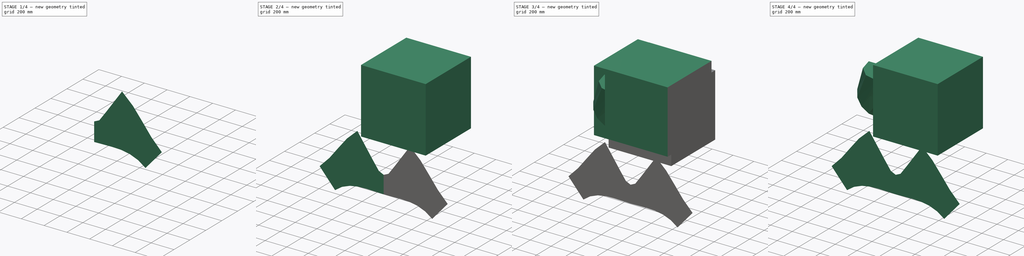
[diagram: build sequence overview — one tinted view per stage of 4, left to right]
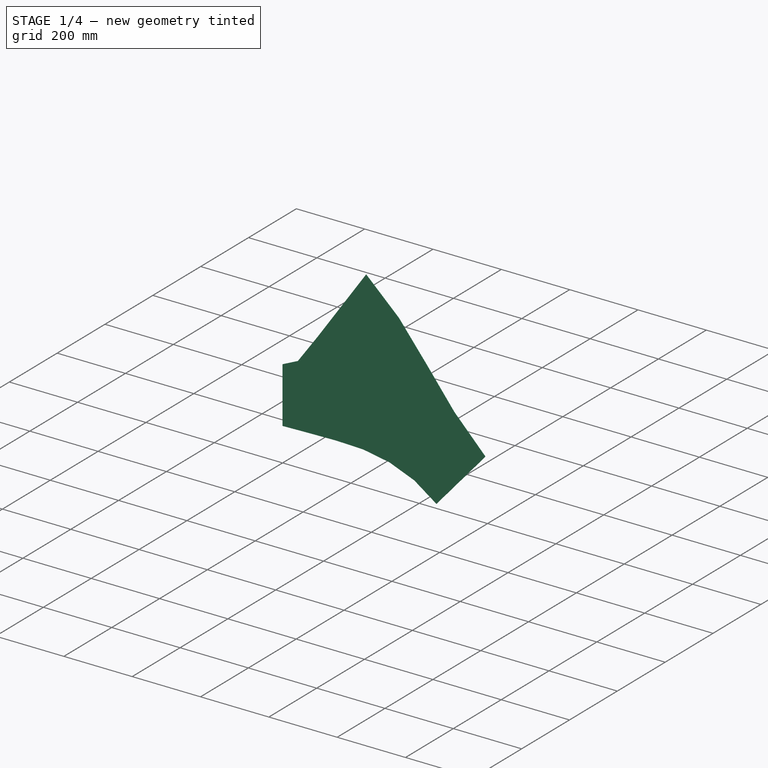
[diagram: stage 1 of 4 — iso view after this stage's code; geometry added in this stage tinted green]
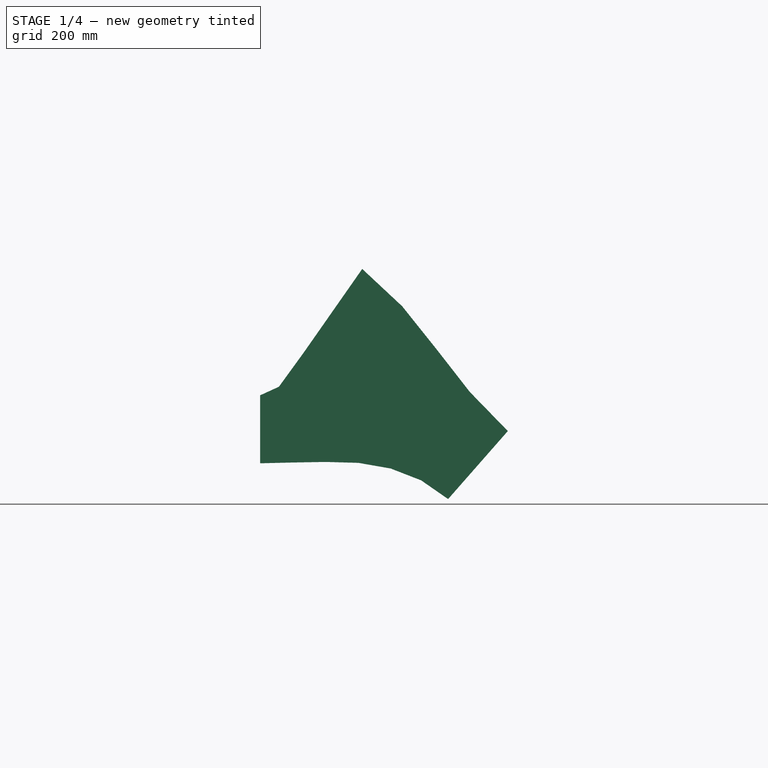
[diagram: stage 1 of 4 — front view after this stage's code; geometry added in this stage tinted green]
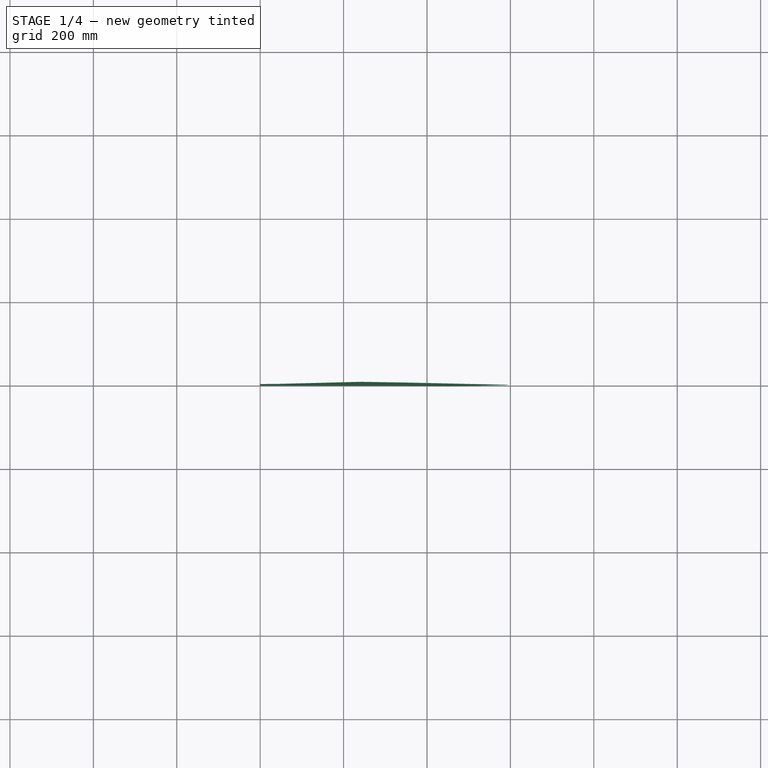
[diagram: stage 1 of 4 — top view after this stage's code; geometry added in this stage tinted green]
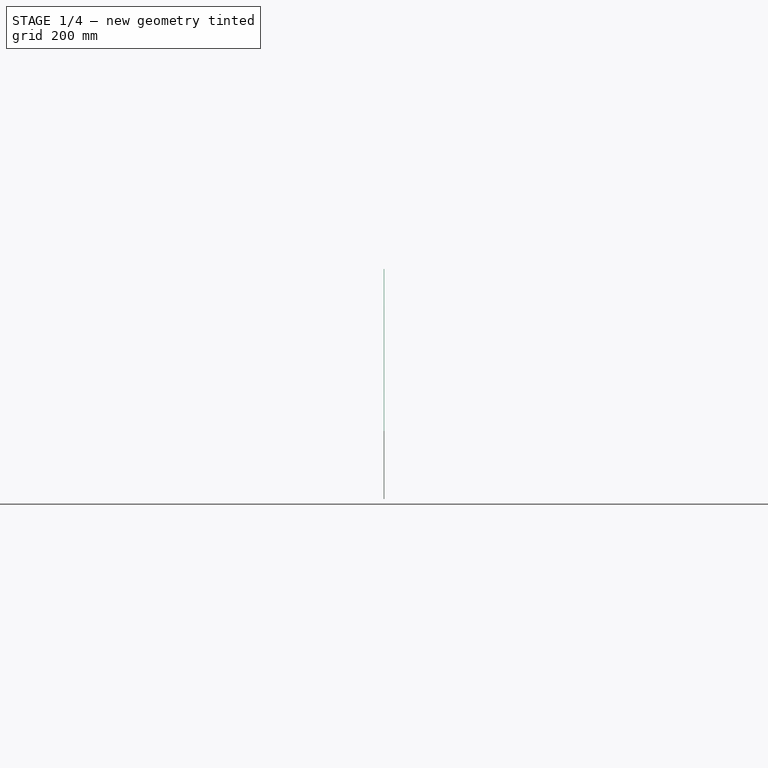
[diagram: stage 1 of 4 — right view after this stage's code; geometry added in this stage tinted green]
FCSTD DOCUMENT  (FreeCAD 0.18R16131 (Git))
Label: calça
License: All rights reserved
LicenseURL: http://en.wikipedia.org/wiki/All_rights_reserved
objects: App::FeaturePython×36, Part::Feature×16, Part::Box×3, Part::Cut×3, Part::RegularPolygon×2, Part::Loft×2, Part::Circle×2, Part::MultiFuse×2, PartDesign::Body×2, Sketcher::SketchObject×1, PartDesign::Pad×1, PartDesign::FeatureBase×1, Part::Compound×1
note: 37 computed .brp shape members not serialized (recipe doc carries the construction recipe); baked Part::Feature solids carry a one-line shape summary decoded from their .brp

FEATURE [Part::Cut] Cut002
  Base = -> Loft001
  Tool = -> Box002
FEATURE [Part::Feature] Cut002001  label="Cut003"
  Placement = pos=(0,0,0) rot=(0,0,1;3.14159rad)
  shape: bbox 568.2 x 560.2 x 418.2 mm, 1 faces, 0 solids (baked)
FEATURE [Part::MultiFuse] Fusion
  Shapes = -> [Cut002,Cut002001]
FEATURE [App::FeaturePython] Dimension016  # Draft dimension (typed FeaturePython)
  Diameter = false
  Dimline = (4.59e-14,250,0)
  Direction = (0,0,0)
  Distance = 500
  End = (4.59e-14,250,0)
  Normal = (0,0,1)
  Start = (-4.59e-14,-250,0)
FEATURE [App::FeaturePython] Dimension017  # Draft dimension (typed FeaturePython)
  Diameter = false
  Dimline = (-212.132,150,-312.132)
  Direction = (0,0,0)
  Distance = 299.983
  End = (-212.132,150,-312.132)
  Normal = (-0.707107,-1e-16,-0.707107)
  Start = (-212.239,-149.983,-312.025)
FEATURE [Sketcher::SketchObject] Sketch
  MapMode = 5
  Placement = pos=(0,0,0) rot=(1,0,0;1.5708rad)
  Support = -> [XZ_Plane]
  sketch-geometry (32):
    g0: LineSegment [constr] StartX=0 StartY=-500 StartZ=0 EndX=0 EndY=-1049 EndZ=0
    g1: LineSegment [constr] StartX=0 StartY=-1049 StartZ=0 EndX=-129.11 EndY=-521.573 EndZ=0
    g2: LineSegment [constr] StartX=-129.11 StartY=-521.573 StartZ=0 EndX=0 EndY=-500 EndZ=0
    g3: LineSegment [constr] StartX=-129.11 StartY=-521.573 StartZ=0 EndX=-78.5179 EndY=-1047.14 EndZ=0
    g4: LineSegment StartX=-78.5179 StartY=-1047.14 StartZ=0 EndX=0 EndY=-1049 EndZ=0
    g5: LineSegment [constr] StartX=-78.5179 StartY=-1047.14 StartZ=0 EndX=-244.703 EndY=-582.997 EndZ=0
    g6: LineSegment [constr] StartX=-244.703 StartY=-582.997 StartZ=0 EndX=-129.11 EndY=-521.573 EndZ=0
    g7: LineSegment [constr] StartX=-244.703 StartY=-582.997 StartZ=0 EndX=-157.046 EndY=-1045.77 EndZ=0
    g8: LineSegment StartX=-157.046 StartY=-1045.77 StartZ=0 EndX=-78.5179 EndY=-1047.14 EndZ=0
    g9: LineSegment [constr] StartX=-157.046 StartY=-1045.77 StartZ=0 EndX=-340.371 EndY=-672.341 EndZ=0
    g10: LineSegment StartX=-340.371 StartY=-672.341 StartZ=0 EndX=-244.703 EndY=-582.997 EndZ=0
    g11: LineSegment [constr] StartX=-340.371 StartY=-672.341 StartZ=0 EndX=-235.554 EndY=-1047.99 EndZ=0
    g12: LineSegment StartX=-235.554 StartY=-1047.99 StartZ=0 EndX=-157.046 EndY=-1045.77 EndZ=0
    g13: LineSegment [constr] StartX=-235.554 StartY=-1047.99 StartZ=0 EndX=-422.117 EndY=-774.578 EndZ=0
    g14: LineSegment StartX=-422.117 StartY=-774.578 StartZ=0 EndX=-340.371 EndY=-672.341 EndZ=0
    g15: LineSegment [constr] StartX=-422.117 StartY=-774.578 StartZ=0 EndX=-312.923 EndY=-1061.5 EndZ=0
    g16: LineSegment StartX=-312.923 StartY=-1061.5 StartZ=0 EndX=-235.554 EndY=-1047.99 EndZ=0
    g17: LineSegment [constr] StartX=-312.923 StartY=-1061.5 StartZ=0 EndX=-502.564 EndY=-877.839 EndZ=0
    g18: LineSegment StartX=-502.564 StartY=-877.839 StartZ=0 EndX=-422.117 EndY=-774.578 EndZ=0
    g19: LineSegment [constr] StartX=-502.564 StartY=-877.839 StartZ=0 EndX=-386.118 EndY=-1089.98 EndZ=0
    g20: LineSegment StartX=-386.118 StartY=-1089.98 StartZ=0 EndX=-312.923 EndY=-1061.5 EndZ=0
    g21: LineSegment [constr] StartX=-386.118 StartY=-1089.98 StartZ=0 EndX=-593.8 EndY=-971.705 EndZ=0
    g22: LineSegment StartX=-593.8 StartY=-971.705 StartZ=0 EndX=-502.564 EndY=-877.839 EndZ=0
    g23: LineSegment StartX=-593.8 StartY=-971.705 StartZ=0 EndX=-450.631 EndY=-1134.78 EndZ=0
    g24: LineSegment StartX=-450.631 StartY=-1134.78 StartZ=0 EndX=-386.118 EndY=-1089.98 EndZ=0
    g25: GeomPoint X=0 Y=-886 Z=0
    g26: GeomPoint X=-44.9388 Y=-865.42 Z=0
    g27: GeomPoint X=-103.814 Y=-784.358 Z=0
    g28: LineSegment StartX=-244.703 StartY=-582.997 StartZ=0 EndX=-103.814 EndY=-784.358 EndZ=0
    g29: LineSegment StartX=-103.814 StartY=-784.358 StartZ=0 EndX=-44.9388 EndY=-865.42 EndZ=0
    g30: LineSegment StartX=-44.9388 StartY=-865.42 StartZ=0 EndX=0 EndY=-886 EndZ=0
    g31: LineSegment StartX=0 StartY=-886 StartZ=0 EndX=0 EndY=-1049 EndZ=0
  constraints (78):
    c: Vertical(g0)
    c: Coincident(g0,g1)
    c: Coincident(g1,g2)
    c: Coincident(g2,g0)
    c: Distance(g0) = 549
    c: Distance(g1) = 543
    c: Distance(g2) = 130.9  'diam*pi/12=step'
    c: Coincident(g1,g3)
    c: Coincident(g3,g4)
    c: Coincident(g4,g0)
    c: Distance(g3) = 528
    c: Distance(g4) = 78.5398  'diam*pi/12 = step'
    c: Coincident(g3,g5)
    c: Coincident(g5,g6)
    c: Coincident(g6,g1)
    c: Equal(g2,g6)
    c: Distance(g5) = 493
    c: Coincident(g5,g7)
    c: Coincident(g7,g8)
    c: Coincident(g8,g3)
    c: Equal(g4,g8)
    c: Distance(g7) = 471
    c: Coincident(g7,g9)
    c: Coincident(g9,g10)
    c: Coincident(g10,g5)
    c: Equal(g6,g10)
    c: Distance(g9) = 416
    c: Coincident(g9,g11)
    c: Coincident(g11,g12)
    c: Coincident(g12,g7)
    c: Equal(g8,g12)
    c: Distance(g11) = 390
    c: Coincident(g11,g13)
    c: Coincident(g13,g14)
    c: Coincident(g14,g9)
    c: Equal(g10,g14)
    c: Distance(g13) = 331
    c: Coincident(g13,g15)
    c: Coincident(g15,g16)
    c: Coincident(g16,g11)
    c: Equal(g12,g16)
    c: Distance(g15) = 307
    c: Coincident(g15,g17)
    c: Coincident(g17,g18)
    c: Coincident(g18,g13)
    c: Equal(g14,g18)
    c: Distance(g17) = 264
    c: Coincident(g17,g19)
    c: Coincident(g19,g20)
    c: Coincident(g20,g15)
    c: Equal(g16,g20)
    c: Distance(g19) = 242
    c: Coincident(g19,g21)
    c: Coincident(g21,g22)
    c: Coincident(g22,g17)
    c: Equal(g18,g22)
    c: Distance(g21) = 239
    c: Coincident(g21,g23)
    c: Coincident(g23,g24)
    c: Coincident(g24,g19)
    c: Equal(g20,g24)
    c: Distance(g23) = 217
    c: PointOnObject(g26,g1)
    c: PointOnObject(g27,g3)
    c: PointOnObject(g25,g0)
    c: DistanceY(g0,g25) = 163
    c: Distance(g26,g0) = 189
    c: Distance(g27,g3) = 264
    c: Coincident(g6,g28)
    c: Coincident(g28,g27)
    c: Coincident(g28,g29)
    c: Coincident(g29,g26)
    c: Coincident(g29,g30)
    c: Coincident(g30,g25)
    c: PointOnObject(g2,g-2)
    c: DistanceY(g2,g-1) = 500
    c: Coincident(g31,g25)
    c: Coincident(g31,g4)
FEATURE [PartDesign::Pad] Pad
  Length = 1
  Length2 = 100
  Midplane = true
  Placement = pos=(0,0,0) rot=(1,0,0;1.5708rad)
  Profile = -> Sketch
  Type = 0
FEATURE [PartDesign::Body] Body
  Group = -> [Sketch,Pad]
  Origin = -> Origin
  Tip = -> Pad
FEATURE [PartDesign::FeatureBase] Clone
  BaseFeature = -> Pad
  Placement = pos=(0,0,0) rot=(0,0.707107,0.707107;3.14159rad)
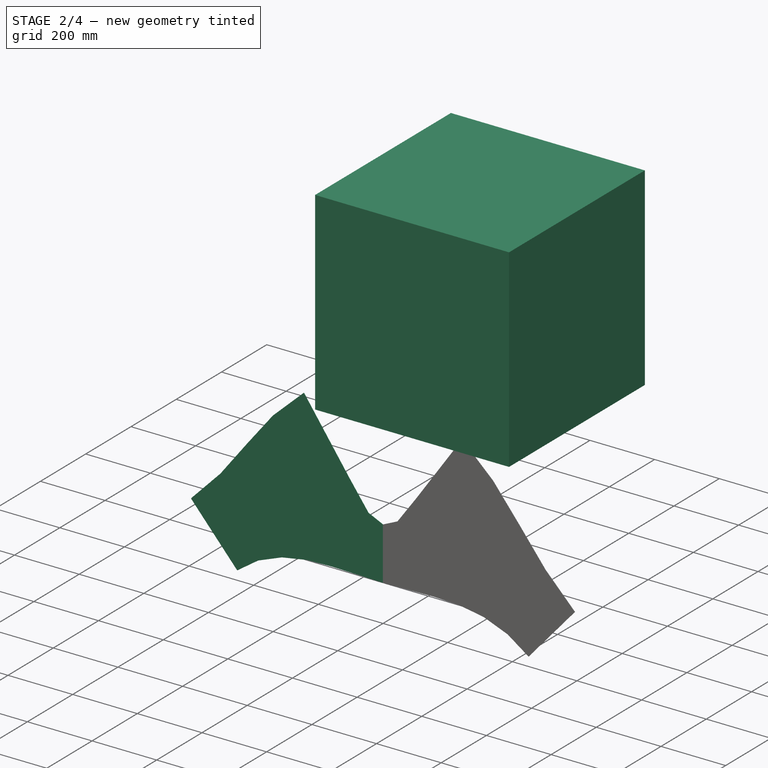
[diagram: stage 2 of 4 — iso view after this stage's code; geometry added in this stage tinted green]
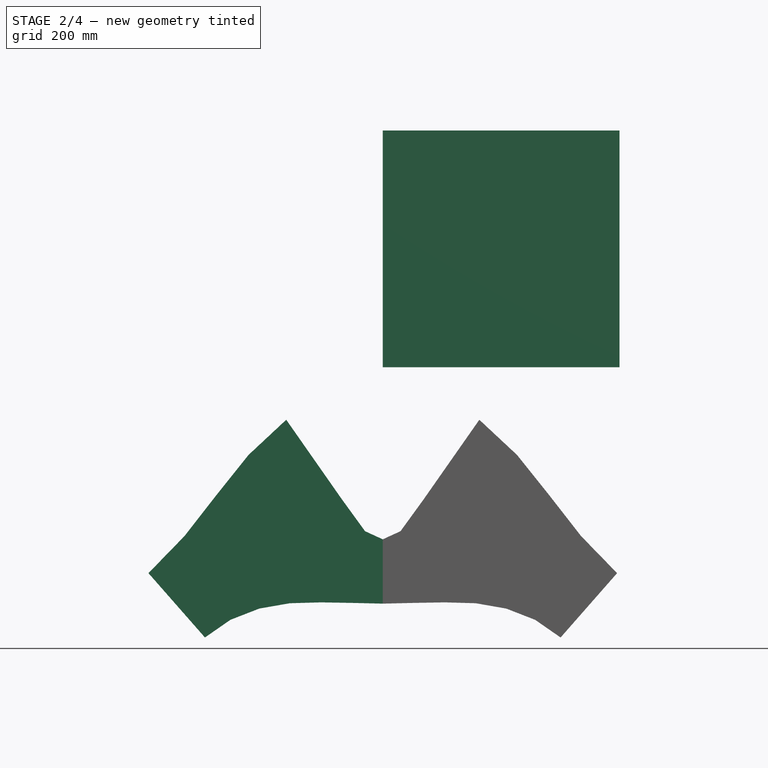
[diagram: stage 2 of 4 — front view after this stage's code; geometry added in this stage tinted green]
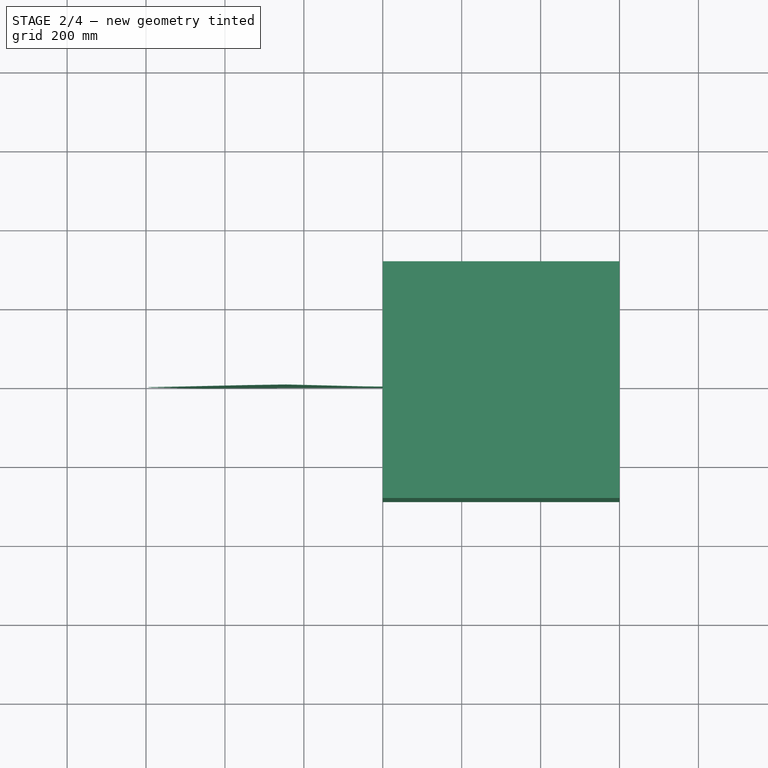
[diagram: stage 2 of 4 — top view after this stage's code; geometry added in this stage tinted green]
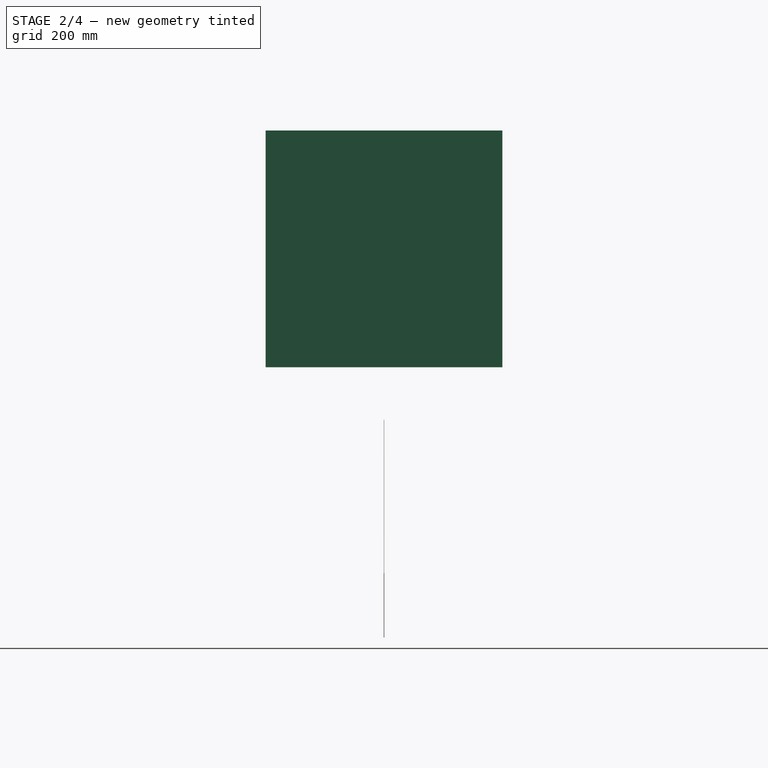
[diagram: stage 2 of 4 — right view after this stage's code; geometry added in this stage tinted green]
FEATURE [App::FeaturePython] Dimension013  # Draft dimension (typed FeaturePython)
  Diameter = false
  Dimline = (-105.901,-0.164123,-418.198)
  Direction = (0,0,0)
  Distance = 163.402
  End = (-105.676,-0.356663,-418.253)
  Normal = (0.726072,-0.258308,-0.637256)
  Start = (0,0,-293.624)
FEATURE [App::FeaturePython] Dimension014  # Draft dimension (typed FeaturePython)
  Diameter = false
  Dimline = (-120.113,-75.4831,-404.152)
  Direction = (0,0,0)
  Distance = 188.668
  End = (-120.334,-75.0815,-403.93)
  Normal = (0.726072,-0.258308,-0.637256)
  Start = (-2.84e-14,-92.8567,-259.71)
FEATURE [App::FeaturePython] Dimension015  # Draft dimension (typed FeaturePython)
  Diameter = false
  Dimline = (-159.099,-129.904,-365.165)
  Direction = (0,0,0)
  Distance = 263.598
  End = (-159.099,-129.904,-365.165)
  Normal = (0.467636,-0.706389,-0.531349)
  Start = (0,-178.402,-160.668)
FEATURE [Part::Circle] Circle
  Angle0 = 0
  Angle1 = 360
  AttacherType = Attacher::AttachEngine3D
  Placement = pos=(-212.132,0,-312.132) rot=(0,1,0;0.785398rad)
  Radius = 150
FEATURE [Part::Circle] Circle001
  Angle0 = 0
  Angle1 = 360
  AttacherType = Attacher::AttachEngine3D
  Radius = 250
FEATURE [Part::Loft] Loft001
  Closed = false
  MaxDegree = 5
  Ruled = false
  Sections = -> [Circle,Circle001]
  Solid = false
FEATURE [Part::Box] Box002  label="Cube002"
  AttacherType = Attacher::AttachEngine3D
  Height = 600
  Length = 600
  Placement = pos=(0,-300,-450) rot=(0,0,1;0rad)
  Width = 600
FEATURE [PartDesign::Body] Body001
  Group = -> [Clone]
  Origin = -> Origin001
  Tip = -> Clone
FEATURE [Part::MultiFuse] Fusion001
  Shapes = -> [Body,Body001]
FEATURE [Part::Feature] Edge001
  shape: bbox 25.3 x 2e-07 x 262.8 mm, 0 faces, 0 solids (baked)
FEATURE [Part::Feature] Edge002
  shape: bbox 87.66 x 2e-07 x 462.8 mm, 0 faces, 0 solids (baked)
FEATURE [Part::Feature] Edge003
  shape: bbox 104.8 x 2e-07 x 375.7 mm, 0 faces, 0 solids (baked)
FEATURE [Part::Feature] Edge004
  shape: bbox 109.2 x 2e-07 x 286.9 mm, 0 faces, 0 solids (baked)
FEATURE [Part::Feature] Edge005
  shape: bbox 116.4 x 2e-07 x 212.1 mm, 0 faces, 0 solids (baked)
FEATURE [Part::Feature] Edge
  shape: bbox 44.94 x 2e-07 x 183.6 mm, 0 faces, 0 solids (baked)
FEATURE [Part::Feature] Edge006
  shape: bbox 166.2 x 2e-07 x 464.1 mm, 0 faces, 0 solids (baked)
FEATURE [Part::Feature] Edge007
  shape: bbox 183.3 x 2e-07 x 373.4 mm, 0 faces, 0 solids (baked)
FEATURE [Part::Feature] Edge008
  shape: bbox 186.6 x 2e-07 x 273.4 mm, 0 faces, 0 solids (baked)
FEATURE [Part::Feature] Edge009
  shape: bbox 189.6 x 2e-07 x 183.7 mm, 0 faces, 0 solids (baked)
FEATURE [Part::Feature] Edge010
  shape: bbox 207.7 x 2e-07 x 118.3 mm, 0 faces, 0 solids (baked)
FEATURE [Part::Compound] Compound
  Links = -> [Edge001,Edge002,Edge003,Edge004,Edge005,Edge,Edge006,Edge007,Edge008,Edge009,Edge010]
FEATURE [Part::Feature] Compound001
  Placement = pos=(0,0,0) rot=(0,0,1;3.14159rad)
  shape: bbox 593.8 x 2e-07 x 507 mm, 0 faces, 0 solids (baked)
FEATURE [App::FeaturePython] Dimension018  # Draft dimension (typed FeaturePython)
  Diameter = false
  Dimline = (-2.06e-14,-0.5,-1049)
  Direction = (0,0,0)
  Distance = 163.345
  End = (-2.06e-14,-0.5,-1049)
  Normal = (0,-1,7e-16)
  Start = (0.750205,-0.5,-885.656)
FEATURE [App::FeaturePython] Dimension019  # Draft dimension (typed FeaturePython)
  Diameter = false
  Dimline = (-2.13e-14,-0.5,-1049)
  Direction = (0,0,0)
  Distance = 189
  End = (-2.13e-14,-0.5,-1049)
  Normal = (0,-1,7e-16)
  Start = (-44.9388,-0.5,-865.42)
FEATURE [App::FeaturePython] Dimension020  # Draft dimension (typed FeaturePython)
  Diameter = false
  Dimline = (-78.5179,-0.5,-1047.14)
  Direction = (0,0,0)
  Distance = 264
  End = (-78.5179,-0.5,-1047.14)
  Normal = (0,-1,7e-16)
  Start = (-103.814,-0.5,-784.358)
FEATURE [App::FeaturePython] Dimension021  # Draft dimension (typed FeaturePython)
  Diameter = false
  Dimline = (-244.703,-0.5,-582.997)
  Direction = (0,0,0)
  Distance = 493
  End = (-244.703,-0.5,-582.997)
  Normal = (0,-1,7e-16)
  Start = (-78.5179,-0.5,-1047.14)
FEATURE [App::FeaturePython] Dimension022  # Draft dimension (typed FeaturePython)
  Diameter = false
  Dimline = (-244.703,-0.5,-582.997)
  Direction = (0,0,0)
  Distance = 471
  End = (-244.703,-0.5,-582.997)
  Normal = (0,-1,7e-16)
  Start = (-157.046,-0.5,-1045.77)
FEATURE [App::FeaturePython] Dimension023  # Draft dimension (typed FeaturePython)
  Diameter = false
  Dimline = (-340.371,-0.5,-672.341)
  Direction = (0,0,0)
  Distance = 416
  End = (-340.371,-0.5,-672.341)
  Normal = (0,-1,7e-16)
  Start = (-157.046,-0.5,-1045.77)
FEATURE [App::FeaturePython] Dimension024  # Draft dimension (typed FeaturePython)
  Diameter = false
  Dimline = (-340.371,-0.5,-672.341)
  Direction = (0,0,0)
  Distance = 390
  End = (-340.371,-0.5,-672.341)
  Normal = (0,-1,7e-16)
  Start = (-235.554,-0.5,-1047.99)
FEATURE [App::FeaturePython] Dimension025  # Draft dimension (typed FeaturePython)
  Diameter = false
  Dimline = (-422.117,-0.5,-774.578)
  Direction = (0,0,0)
  Distance = 331
  End = (-422.117,-0.5,-774.578)
  Normal = (0,-1,7e-16)
  Start = (-235.554,-0.5,-1047.99)
FEATURE [App::FeaturePython] Dimension026  # Draft dimension (typed FeaturePython)
  Diameter = false
  Dimline = (-422.117,-0.5,-774.578)
  Direction = (0,0,0)
  Distance = 307
  End = (-422.117,-0.5,-774.578)
  Normal = (0,-1,7e-16)
  Start = (-312.923,-0.5,-1061.5)
FEATURE [App::FeaturePython] Dimension027  # Draft dimension (typed FeaturePython)
  Diameter = false
  Dimline = (-502.564,-0.5,-877.839)
  Direction = (0,0,0)
  Distance = 264
  End = (-502.564,-0.5,-877.839)
  Normal = (0,-1,7e-16)
  Start = (-312.923,-0.5,-1061.5)
FEATURE [App::FeaturePython] Dimension028  # Draft dimension (typed FeaturePython)
  Diameter = false
  Dimline = (-502.564,-0.5,-877.839)
  Direction = (0,0,0)
  Distance = 242
  End = (-502.564,-0.5,-877.839)
  Normal = (0,-1,7e-16)
  Start = (-386.118,-0.5,-1089.98)
FEATURE [App::FeaturePython] Dimension029  # Draft dimension (typed FeaturePython)
  Diameter = false
  Dimline = (-593.8,-0.5,-971.705)
  Direction = (0,0,0)
  Distance = 239
  End = (-593.8,-0.5,-971.705)
  Normal = (0,-1,7e-16)
  Start = (-386.118,-0.5,-1089.98)
FEATURE [App::FeaturePython] Dimension030  # Draft dimension (typed FeaturePython)
  Diameter = false
  Dimline = (-501.063,-0.5,-1154.26)
  Direction = (0,0,0)
  Distance = 216.864
  End = (-450.721,-0.5,-1134.67)
  Normal = (0,-1,7e-16)
  Start = (-593.8,-0.5,-971.705)
FEATURE [App::FeaturePython] Dimension031  # Draft dimension (typed FeaturePython)
  Diameter = false
  Dimline = (-429.151,-0.5,-1164.37)
  Direction = (0,0,0)
  Distance = 78.5554
  End = (-450.721,-0.5,-1134.67)
  Normal = (0,-1,7e-16)
  Start = (-386.118,-0.5,-1089.98)
FEATURE [App::FeaturePython] Dimension032  # Draft dimension (typed FeaturePython)
  Diameter = false
  Dimline = (-624.403,0.5,-936.848)
  Direction = (0,0,0)
  Distance = 130.9
  End = (-593.8,-0.5,-971.705)
  Normal = (0,-1,7e-16)
  Start = (-502.564,-0.5,-877.839)
FEATURE [App::FeaturePython] Dimension033  # Draft dimension (typed FeaturePython)
  Diameter = false
  Dimline = (-103.809,-0.5,-784.412)
  Direction = (0,0,0)
  Distance = 245.803
  End = (-103.809,-0.5,-784.412)
  Normal = (0,-1,7e-16)
  Start = (-244.703,-0.5,-582.997)
FEATURE [App::FeaturePython] Dimension034  # Draft dimension (typed FeaturePython)
  Diameter = false
  Dimline = (-44.9388,-0.5,-865.42)
  Direction = (0,0,0)
  Distance = 100.187
  End = (-44.9388,-0.5,-865.42)
  Normal = (0,-1,7e-16)
  Start = (-103.814,-0.5,-784.358)
FEATURE [App::FeaturePython] Dimension035  # Draft dimension (typed FeaturePython)
  Diameter = false
  Dimline = (0.750205,-0.5,-885.656)
  Direction = (0,0,0)
  Distance = 49.2679
  End = (0.750205,-0.5,-885.656)
  Normal = (0,-1,7e-16)
  Start = (-44.5694,-0.706699,-866.332)
FEATURE [Part::Feature] Fusion001001  label="Fusion002"
  Placement = pos=(0,0,-600) rot=(0,0,1;0rad)
  shape: bbox 1188 x 1 x 551.8 mm, 32 faces (baked)
FEATURE [Part::Feature] Compound001001  label="Compound002"
  Placement = pos=(0,0,-600) rot=(0,0,1;3.14159rad)
  shape: bbox 593.8 x 2e-07 x 507 mm, 0 faces, 0 solids (baked)
FEATURE [Part::Feature] Compound001001001  label="Compound003"
  Placement = pos=(0,0,-600) rot=(0,0,1;0rad)
  shape: bbox 593.8 x 2e-07 x 507 mm, 0 faces, 0 solids (baked)
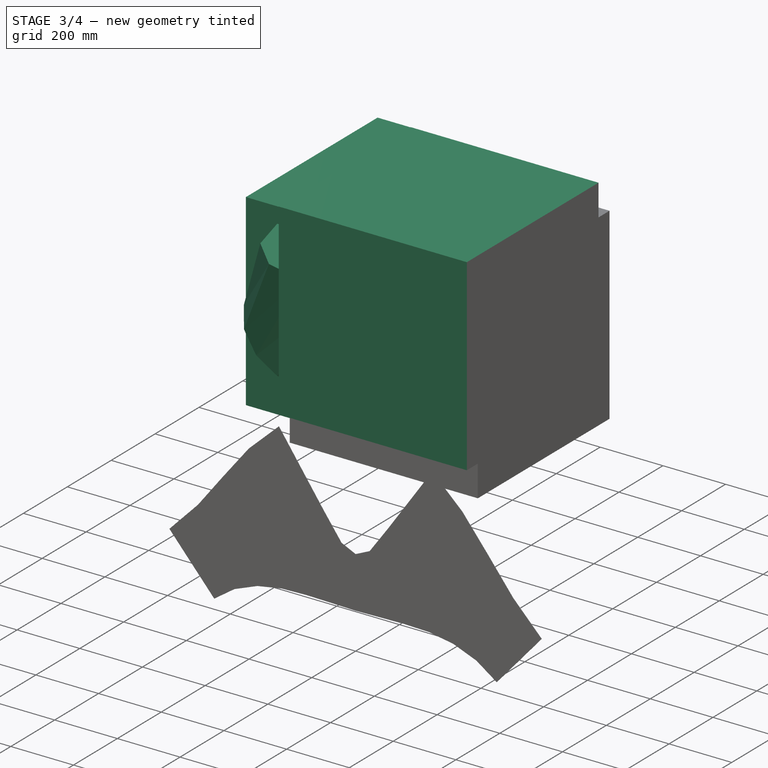
[diagram: stage 3 of 4 — iso view after this stage's code; geometry added in this stage tinted green]
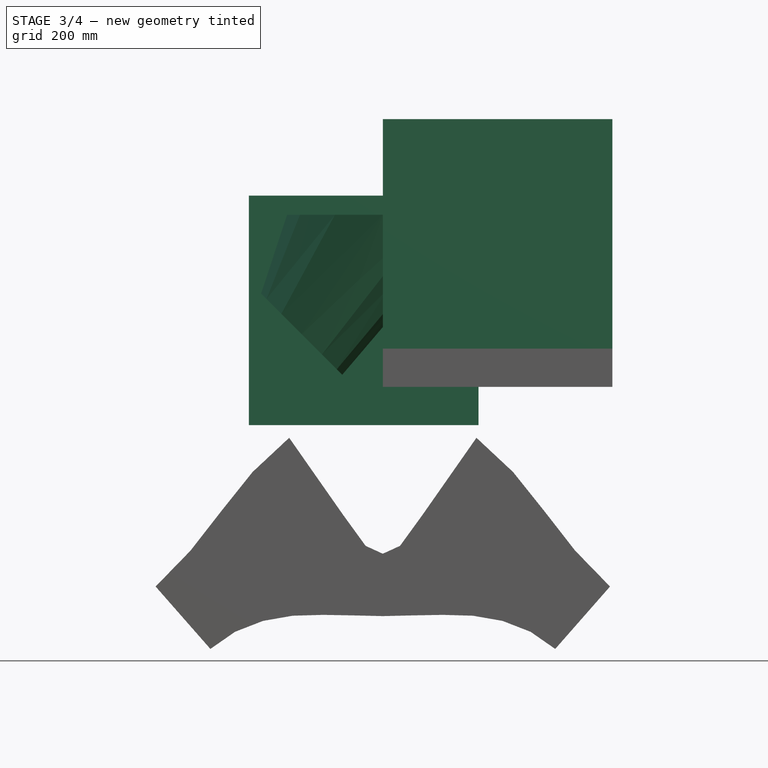
[diagram: stage 3 of 4 — front view after this stage's code; geometry added in this stage tinted green]
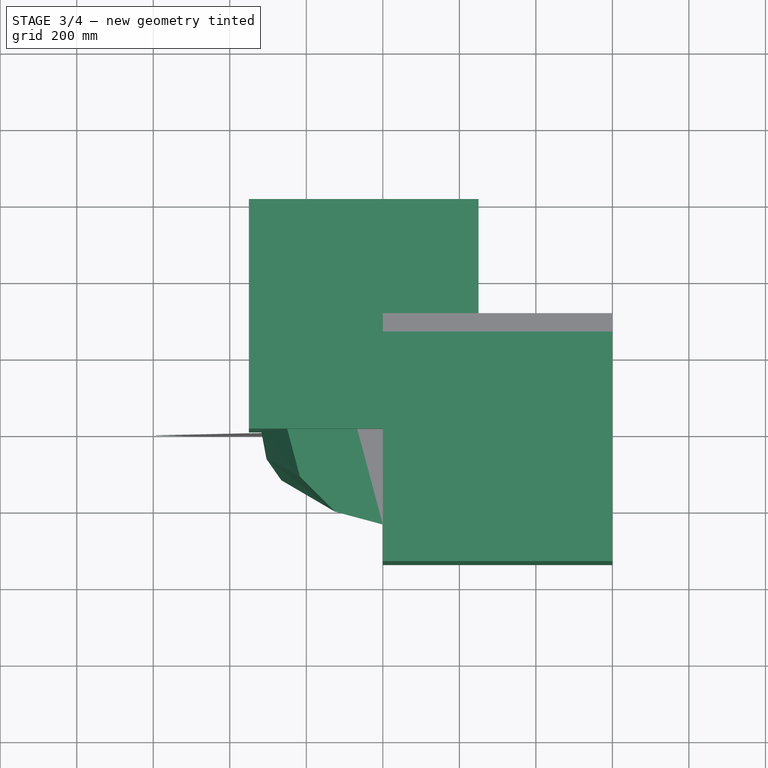
[diagram: stage 3 of 4 — top view after this stage's code; geometry added in this stage tinted green]
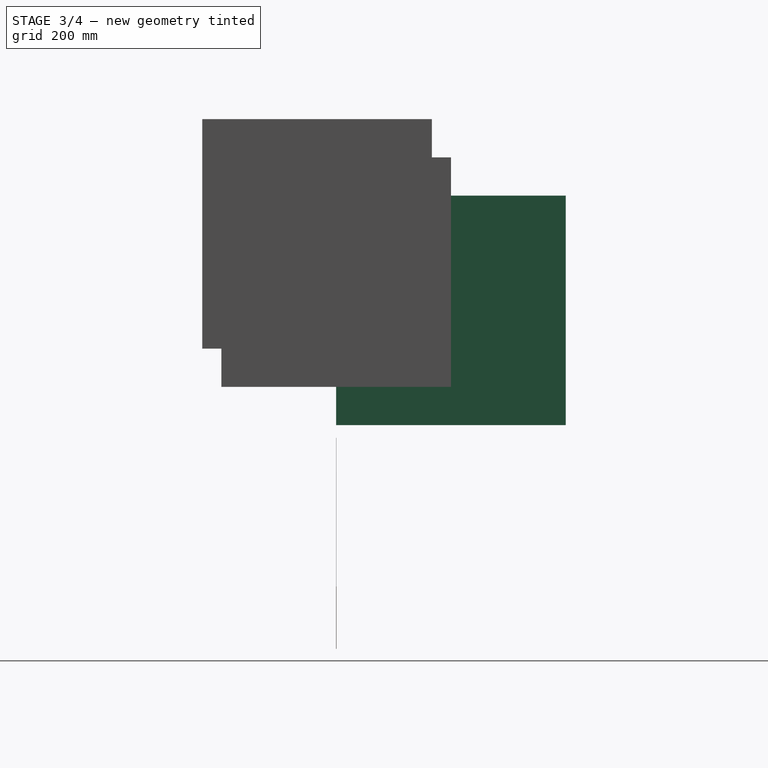
[diagram: stage 3 of 4 — right view after this stage's code; geometry added in this stage tinted green]
FEATURE [Part::RegularPolygon] RegularPolygon  label="Regular polygon"
  AttacherType = Attacher::AttachEngine3D
  Circumradius = 150
  Placement = pos=(-212.132,0,-312.132) rot=(0,1,0;0.785398rad)
  Polygon = 12
FEATURE [Part::RegularPolygon] RegularPolygon001  label="Regular polygon001"
  AttacherType = Attacher::AttachEngine3D
  Circumradius = 250
  Polygon = 12
FEATURE [Part::Loft] Loft
  Closed = false
  MaxDegree = 5
  Ruled = false
  Sections = -> [RegularPolygon,RegularPolygon001]
  Solid = true
FEATURE [Part::Box] Box  label="Cube"
  AttacherType = Attacher::AttachEngine3D
  Height = 600
  Length = 600
  Placement = pos=(-350,0,-550) rot=(0,0,1;0rad)
  Width = 600
FEATURE [App::FeaturePython] Dimension  # Draft dimension (typed FeaturePython)
  Diameter = false
  Dimline = (-106.055,0,-418.185)
  Direction = (0,0,0)
  Distance = 549.247
  End = (-106.066,-0.00159801,-418.198)
  Normal = (0.726072,-0.258308,-0.637256)
  Start = (250,0,0)
FEATURE [App::FeaturePython] Dimension001  # Draft dimension (typed FeaturePython)
  Diameter = false
  Dimline = (-106.146,-0.422615,-418.118)
  Direction = (0,0,0)
  Distance = 542.629
  End = (-106.146,-0.422615,-418.118)
  Normal = (0.726072,-0.258308,-0.637256)
  Start = (216.506,-125,0)
FEATURE [App::FeaturePython] Dimension002  # Draft dimension (typed FeaturePython)
  Diameter = false
  Dimline = (-120.276,-75,-403.988)
  Direction = (0,0,0)
  Distance = 528.326
  End = (-120.276,-75,-403.988)
  Normal = (0.467636,-0.706389,-0.531349)
  Start = (216.506,-125,0)
FEATURE [App::FeaturePython] Dimension003  # Draft dimension (typed FeaturePython)
  Diameter = false
  Dimline = (-120.368,-75.1302,-403.896)
  Direction = (0,0,0)
  Distance = 493.346
  End = (-120.276,-75,-403.988)
  Normal = (0.467636,-0.706389,-0.531349)
  Start = (125,-216.506,0)
FEATURE [App::FeaturePython] Dimension004  # Draft dimension (typed FeaturePython)
  Diameter = false
  Dimline = (-159.099,-129.904,-365.165)
  Direction = (0,0,0)
  Distance = 470.699
  End = (-159.099,-129.904,-365.165)
  Normal = (0.0329502,-0.945079,-0.325176)
  Start = (125,-216.506,0)
FEATURE [App::FeaturePython] Dimension005  # Draft dimension (typed FeaturePython)
  Diameter = false
  Dimline = (-1.99e-13,-250,0)
  Direction = (0,0,0)
  Distance = 416.03
  End = (-1.99e-13,-250,0)
  Normal = (0.0329502,-0.945079,-0.325176)
  Start = (-159.099,-129.904,-365.165)
FEATURE [App::FeaturePython] Dimension006  # Draft dimension (typed FeaturePython)
  Diameter = false
  Dimline = (-212.132,-150,-312.132)
  Direction = (0,0,0)
  Distance = 390.418
  End = (-212.132,-150,-312.132)
  Normal = (-0.4188,-0.904901,-0.0758997)
  Start = (-1.99e-13,-250,0)
FEATURE [App::FeaturePython] Dimension007  # Draft dimension (typed FeaturePython)
  Diameter = false
  Dimline = (-212.132,-150,-312.132)
  Direction = (0,0,0)
  Distance = 330.831
  End = (-212.132,-150,-312.132)
  Normal = (-0.4188,-0.904901,-0.0758997)
  Start = (-124.963,-216.516,0)
FEATURE [App::FeaturePython] Dimension008  # Draft dimension (typed FeaturePython)
  Diameter = false
  Dimline = (-265.165,-129.904,-259.099)
  Direction = (0,0,0)
  Distance = 307.048
  End = (-265.165,-129.904,-259.099)
  Normal = (-0.752437,-0.640545,0.153431)
  Start = (-125,-216.506,0)
FEATURE [App::FeaturePython] Dimension009  # Draft dimension (typed FeaturePython)
  Diameter = false
  Dimline = (-216.506,-125,0)
  Direction = (0,0,0)
  Distance = 263.53
  End = (-216.506,-125,0)
  Normal = (-0.752437,-0.640545,0.153431)
  Start = (-265.092,-129.949,-258.965)
FEATURE [App::FeaturePython] Dimension010  # Draft dimension (typed FeaturePython)
  Diameter = false
  Dimline = (-303.85,-75.0789,-219.929)
  Direction = (0,0,0)
  Distance = 241.988
  End = (-303.85,-75.0789,-219.929)
  Normal = (-0.92327,-0.232824,0.305558)
  Start = (-216.256,-125.25,0)
FEATURE [App::FeaturePython] Dimension011  # Draft dimension (typed FeaturePython)
  Diameter = false
  Dimline = (-250,1.279e-13,0)
  Direction = (0,0,0)
  Distance = 238.875
  End = (-250,1.279e-13,0)
  Normal = (-0.92327,-0.232824,0.305558)
  Start = (-303.988,-75,-220.276)
FEATURE [App::FeaturePython] Dimension012  # Draft dimension (typed FeaturePython)
  Diameter = false
  Dimline = (-351.942,0,-182.697)
  Direction = (0,0,0)
  Distance = 217.058
  End = (-318.198,1.137e-13,-206.066)
  Normal = (0,-1,0)
  Start = (-250,1.279e-13,0)
FEATURE [Part::Box] Box001  label="Cube001"
  AttacherType = Attacher::AttachEngine3D
  Height = 600
  Length = 600
  Placement = pos=(0,-350,-350) rot=(0,0,1;0rad)
  Width = 600
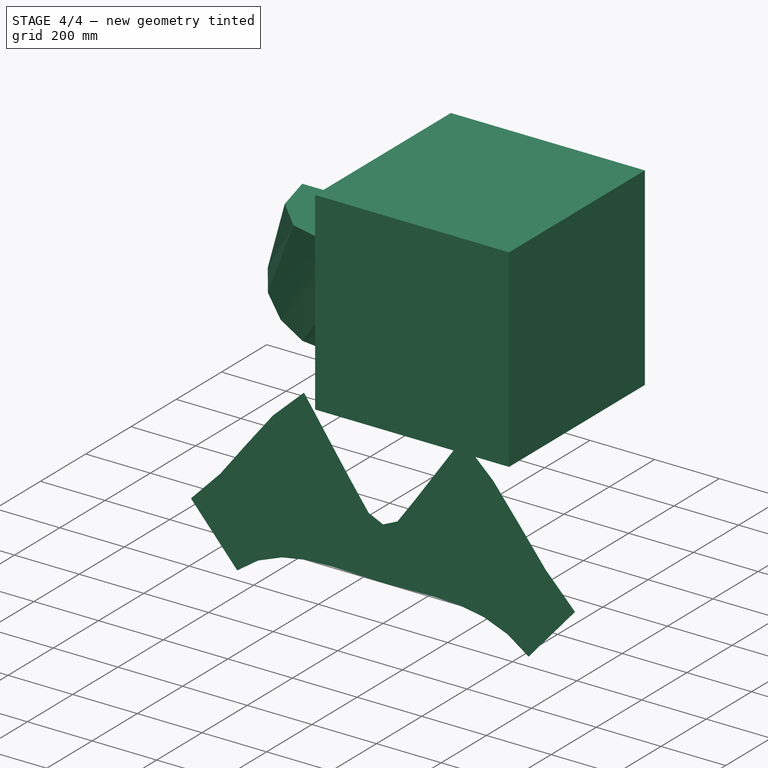
[diagram: stage 4 of 4 — iso view after this stage's code; geometry added in this stage tinted green]
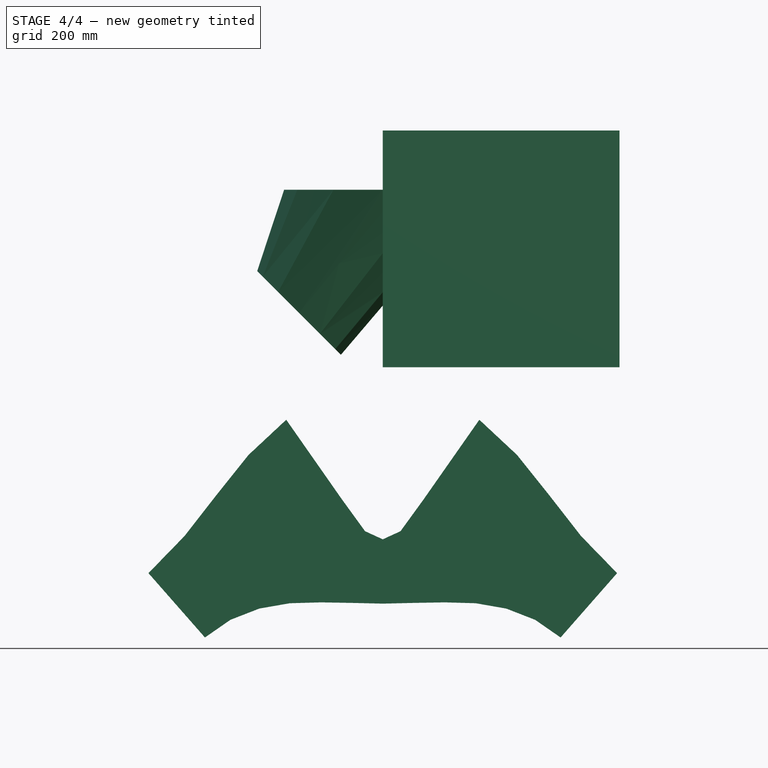
[diagram: stage 4 of 4 — front view after this stage's code; geometry added in this stage tinted green]
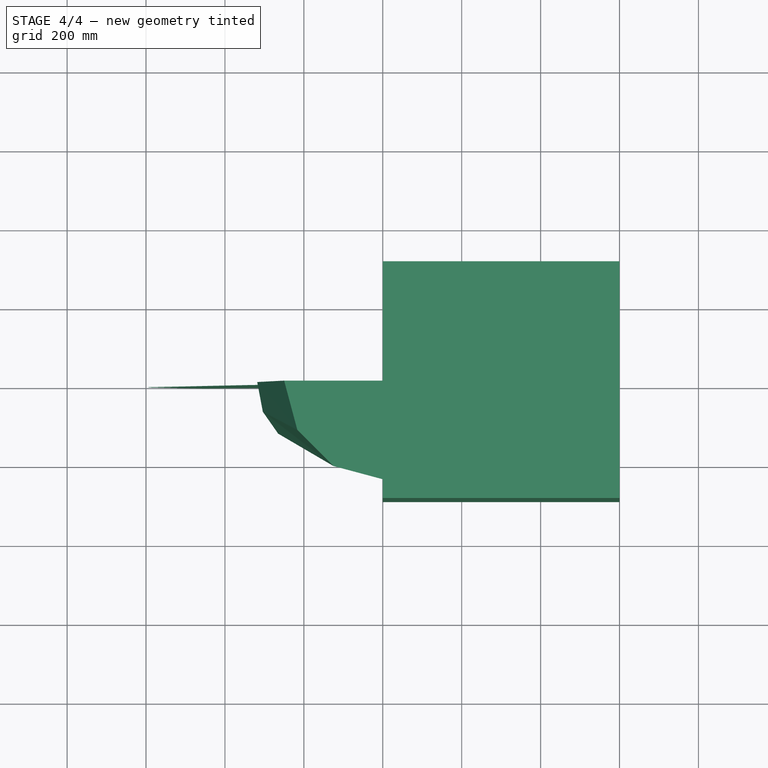
[diagram: stage 4 of 4 — top view after this stage's code; geometry added in this stage tinted green]
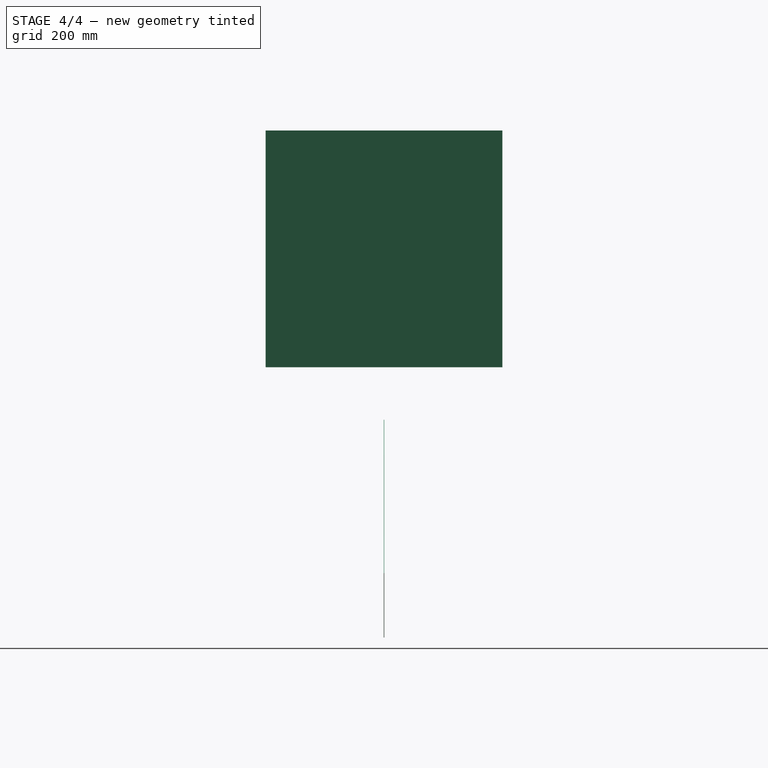
[diagram: stage 4 of 4 — right view after this stage's code; geometry added in this stage tinted green]
FEATURE [Part::Cut] Cut
  Base = -> Loft
  Tool = -> Box
FEATURE [Part::Cut] Cut001
  Base = -> Cut
  Tool = -> Box001
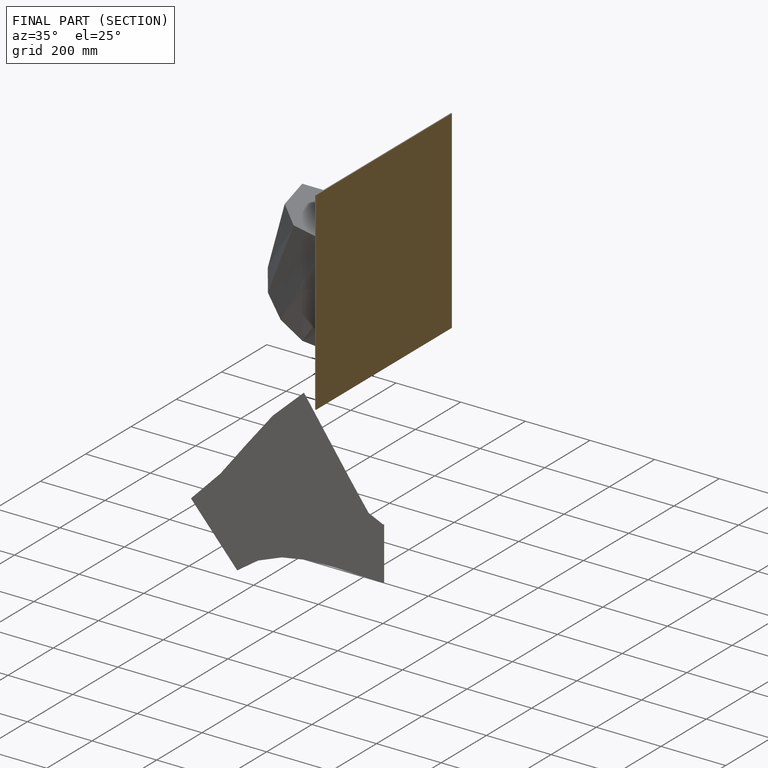
[diagram: finished part — half-section view (interior)]
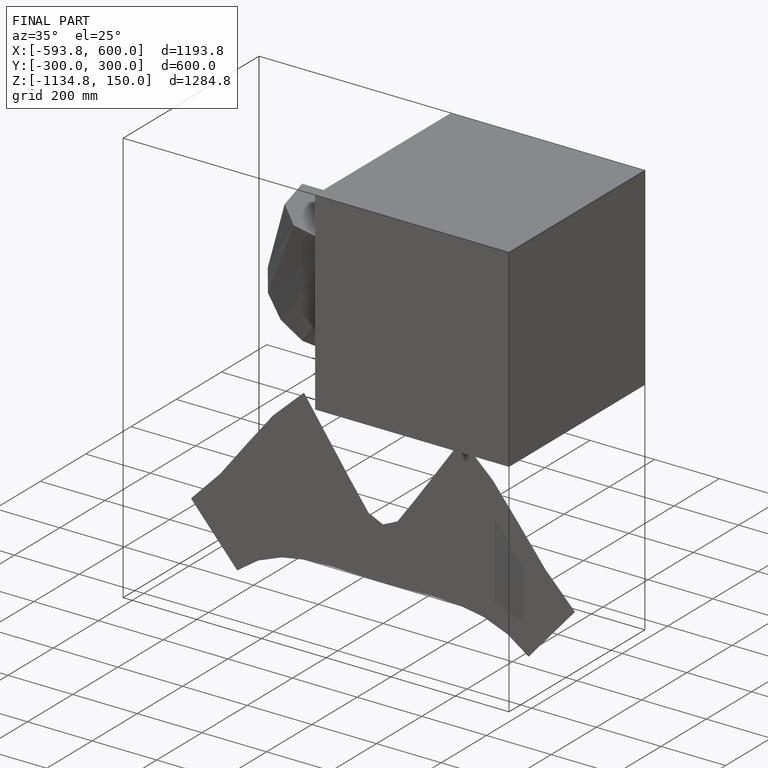
[diagram: finished part — iso view with bounding-box wireframe]
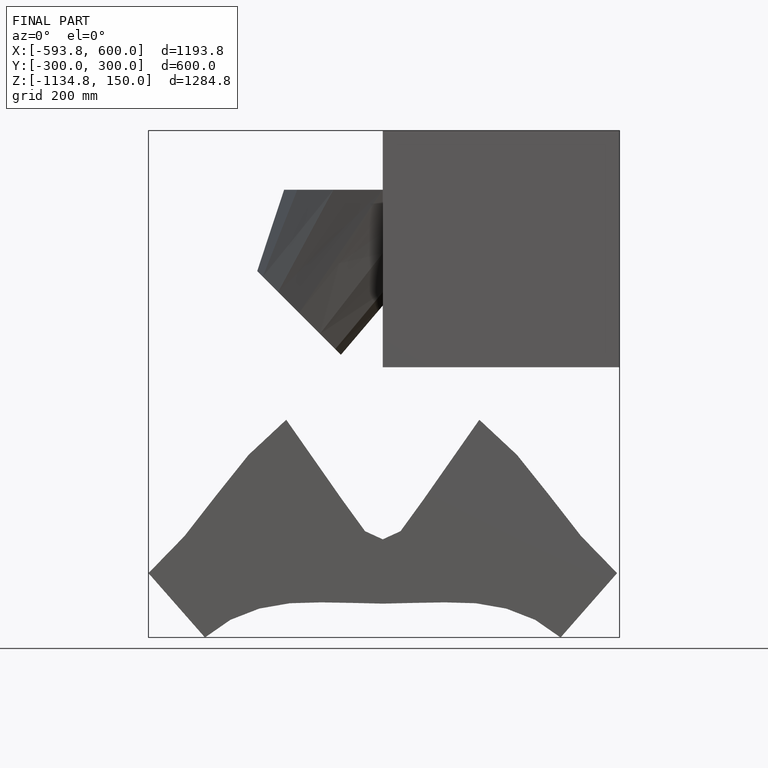
[diagram: finished part — front view with bounding-box wireframe]
